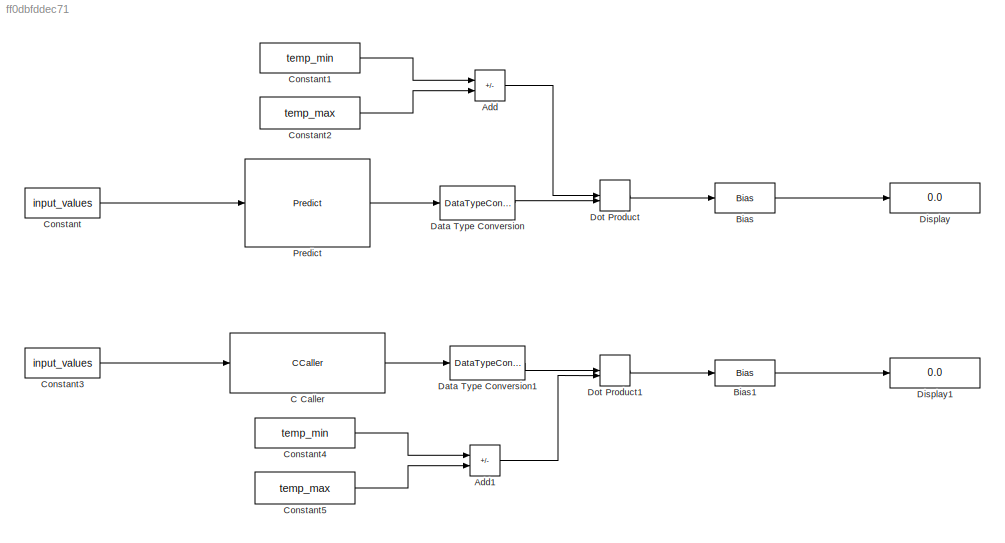
MODEL slx_ff0dbfddec71
KIND model
CONFIG AbsTol = auto
CONFIG EnableMultiTasking = off
CONFIG FixedStep = auto
CONFIG MaxStep = auto
CONFIG MinStep = auto
CONFIG RelTol = 1e-3
CONFIG SampleTimeConstraint = Unconstrained
CONFIG SolverName = VariableStepAuto
CONFIG StartTime = 0.0
CONFIG StopTime = 10.0
BLOCK [Sum] Add
  IconShape = rectangular
  Inputs = -+
BLOCK [Sum] Add1
  IconShape = rectangular
  Inputs = -+
BLOCK [Bias] Bias
  Bias = temp_min
  SaturateOnIntegerOverflow = off
BLOCK [Bias] Bias1
  Bias = temp_min
  SaturateOnIntegerOverflow = off
BLOCK [CCaller] C Caller
  FunctionName = predict
  PortSpecificationStruct = %)30     .    V ,   8    (     @         %    "     (    !     0         %  0 "0    $    _    07)G3F%M90  4&]R=$YA;64 4V-O<&4     26YD97@     5'EP90      4VEZ90      27-';&]B86P   X    P    !@    @    $          4    (     0    ,    !         !   P!O=70 #@   #     &    "     0         !0    @    !     P    $         $  # &]U=  .    .     8    (    !          %    "     $    &     0         0    !@...<+925ch>
BLOCK [Constant] Constant
  Value = input_values
  VectorParams1D = off
BLOCK [Constant] Constant1
  Value = temp_min
BLOCK [Constant] Constant2
  Value = temp_max
BLOCK [Constant] Constant3
  Value = input_values
  VectorParams1D = off
BLOCK [Constant] Constant4
  Value = temp_min
BLOCK [Constant] Constant5
  Value = temp_max
BLOCK [DataTypeConversion] Data Type Conversion
  RndMeth = Floor
  SaturateOnIntegerOverflow = off
BLOCK [DataTypeConversion] Data Type Conversion1
  RndMeth = Floor
  SaturateOnIntegerOverflow = off
BLOCK [Display] Display
  Decimation = 1
BLOCK [Display] Display1
  Decimation = 1
BLOCK [DotProduct] Dot Product
  OutDataTypeStr = Inherit: Inherit via internal rule
BLOCK [DotProduct] Dot Product1
  OutDataTypeStr = Inherit: Inherit via internal rule
BLOCK [Reference] Predict  REF=deeplib/Predict
  SourceBlock = deeplib/Predict
  SourceType = Predict
LINE Add1:1 -> Dot Product1:2
LINE Add:1 -> Dot Product:1
LINE Bias1:1 -> Display1:1
LINE Bias:1 -> Display:1
LINE C Caller:1 -> Data Type Conversion1:1
LINE Constant1:1 -> Add:1
LINE Constant2:1 -> Add:2
LINE Constant3:1 -> C Caller:1
LINE Constant4:1 -> Add1:1
LINE Constant5:1 -> Add1:2
LINE Constant:1 -> Predict:1
LINE Data Type Conversion1:1 -> Dot Product1:1
LINE Data Type Conversion:1 -> Dot Product:2
LINE Dot Product1:1 -> Bias1:1
LINE Dot Product:1 -> Bias:1
LINE Predict:1 -> Data Type Conversion:1
